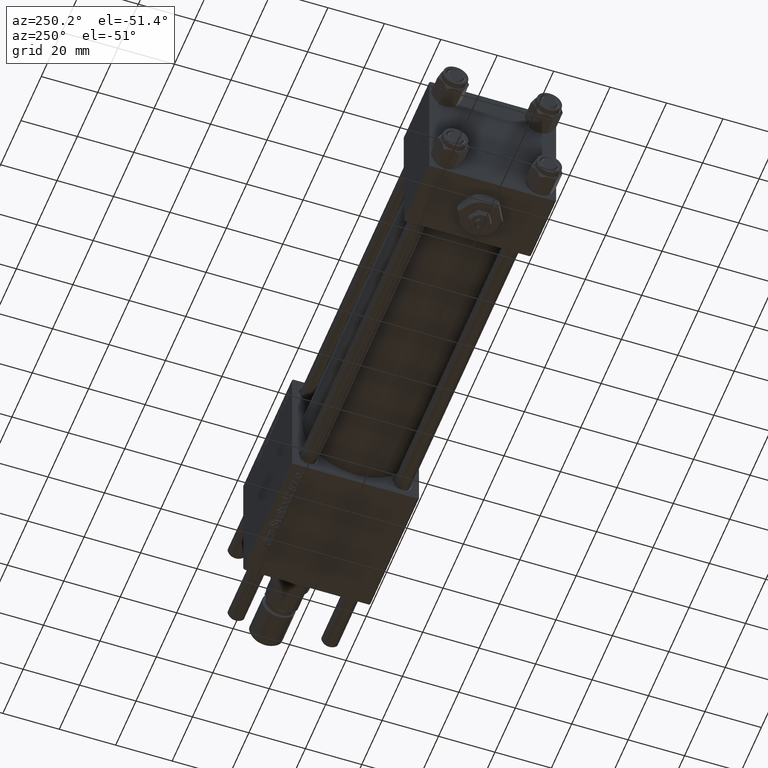
[diagram: clean part render]
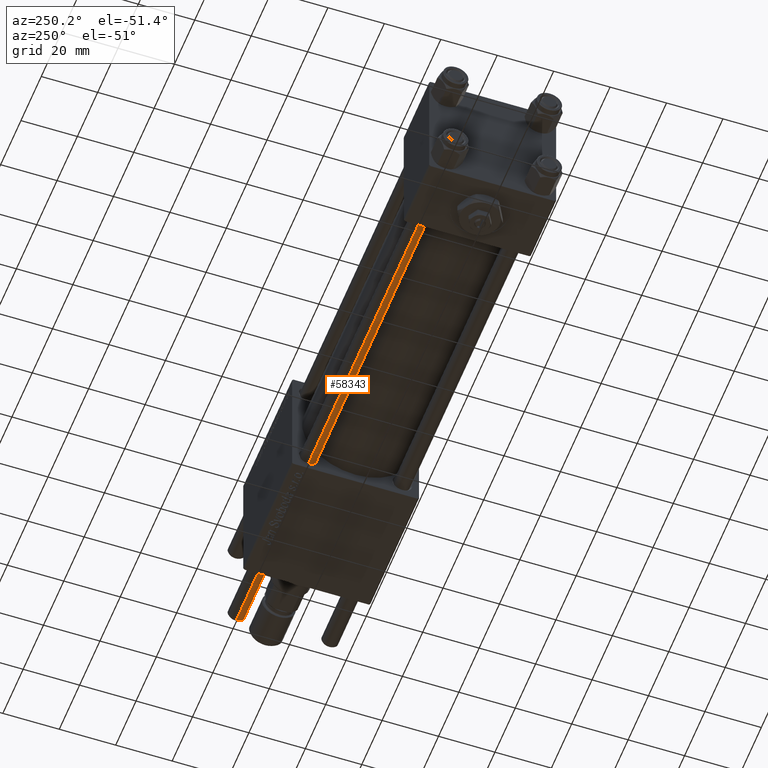
[diagram: same view with one face highlighted and labeled with its STEP entity id]
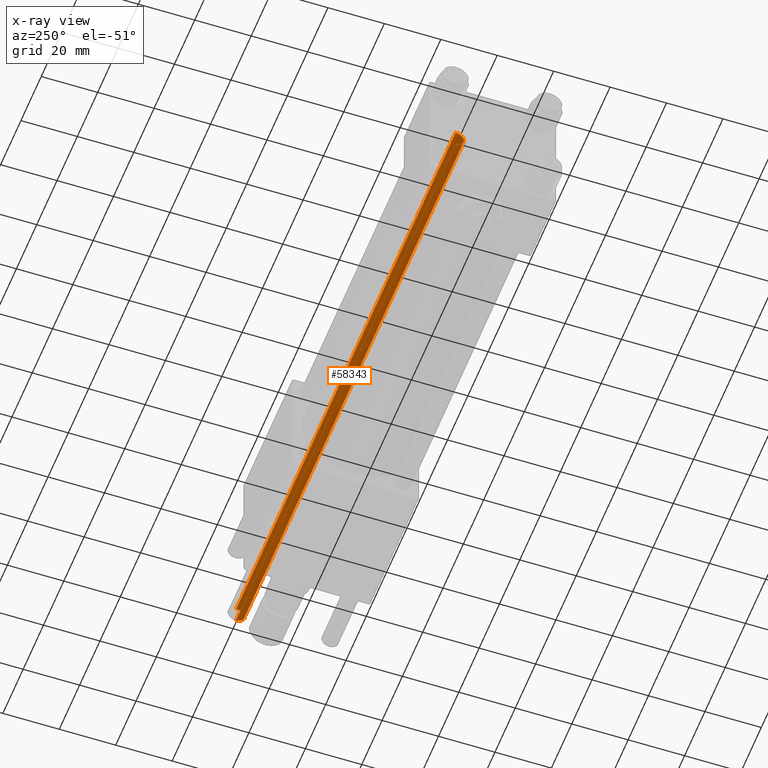
[diagram: x-ray of the same camera — body ghosted, the highlighted face saturated]
A machine part, auxiliary view. The second image highlights one B-rep face of the part: STEP entity #58343.
The next image is the same camera in x-ray: the body ghosted, the highlighted face saturated — about 0% of this face is hidden behind the body in this view.
In plain terms, the highlighted cylindrical surface (edge-blend (fillet) strip) has radius 3 mm, axis along (-1, -0, 0).
Its self-contained STEP definition (entity closure, byte-faithful):
#736 = FACE_OUTER_BOUND ( 'NONE', #41614, .T. ) ;
#828 = DIRECTION ( 'NONE',  ( 1.000000000000000000, 0.000000000000000000, 0.000000000000000000 ) ) ;
#2598 = CIRCLE ( 'NONE', #27418, 3.000000000000000444 ) ;
#4821 = CARTESIAN_POINT ( 'NONE',  ( 3.000000000000000444, 3.673940397442060361E-16, 217.0000000000000000 ) ) ;
#5140 = ORIENTED_EDGE ( 'NONE', *, *, #7292, .T. ) ;
#5290 = CARTESIAN_POINT ( 'NONE',  ( 0.000000000000000000, 0.000000000000000000, 0.5000000000000559552 ) ) ;
#6244 = VERTEX_POINT ( 'NONE', #40143 ) ;
#7292 = EDGE_CURVE ( 'NONE', #6244, #43245, #2598, .T. ) ;
#11136 = DIRECTION ( 'NONE',  ( 1.000000000000000000, 0.000000000000000000, 0.000000000000000000 ) ) ;
#11223 = EDGE_CURVE ( 'NONE', #30944, #6244, #15094, .T. ) ;
#13222 = VECTOR ( 'NONE', #41660, 1000.000000000000000 ) ;
#14589 = CARTESIAN_POINT ( 'NONE',  ( 3.000000000000000444, 3.673940397442060361E-16, 216.5000000000000000 ) ) ;
#15094 = LINE ( 'NONE', #46735, #13222 ) ;
#15329 = CARTESIAN_POINT ( 'NONE',  ( 0.000000000000000000, 0.000000000000000000, 216.5000000000000000 ) ) ;
#16349 = CIRCLE ( 'NONE', #23991, 3.000000000000000444 ) ;
#16609 = ORIENTED_EDGE ( 'NONE', *, *, #18504, .F. ) ;
#18255 = LINE ( 'NONE', #4821, #56359 ) ;
#18504 = EDGE_CURVE ( 'NONE', #18732, #43245, #18255, .T. ) ;
#18732 = VERTEX_POINT ( 'NONE', #14589 ) ;
#19516 = EDGE_CURVE ( 'NONE', #18732, #30944, #16349, .T. ) ;
#20338 = CARTESIAN_POINT ( 'NONE',  ( -3.000000000000000444, 0.000000000000000000, 216.5000000000000000 ) ) ;
#23490 = DIRECTION ( 'NONE',  ( -0.000000000000000000, -0.000000000000000000, 1.000000000000000000 ) ) ;
#23991 = AXIS2_PLACEMENT_3D ( 'NONE', #15329, #56492, #11136 ) ;
#27418 = AXIS2_PLACEMENT_3D ( 'NONE', #5290, #23490, #828 ) ;
#30944 = VERTEX_POINT ( 'NONE', #20338 ) ;
#37142 = DIRECTION ( 'NONE',  ( -0.000000000000000000, -0.000000000000000000, -1.000000000000000000 ) ) ;
#40143 = CARTESIAN_POINT ( 'NONE',  ( -3.000000000000000444, 0.000000000000000000, 0.5000000000000559552 ) ) ;
#40764 = ORIENTED_EDGE ( 'NONE', *, *, #19516, .T. ) ;
#41235 = DIRECTION ( 'NONE',  ( -0.000000000000000000, -0.000000000000000000, -1.000000000000000000 ) ) ;
#41614 = EDGE_LOOP ( 'NONE', ( #16609, #40764, #49677, #5140 ) ) ;
#41660 = DIRECTION ( 'NONE',  ( -0.000000000000000000, -0.000000000000000000, -1.000000000000000000 ) ) ;
#43245 = VERTEX_POINT ( 'NONE', #43545 ) ;
#43545 = CARTESIAN_POINT ( 'NONE',  ( 3.000000000000000444, 3.673940397442060361E-16, 0.5000000000000559552 ) ) ;
#46094 = CARTESIAN_POINT ( 'NONE',  ( 0.000000000000000000, 0.000000000000000000, 217.0000000000000000 ) ) ;
#46735 = CARTESIAN_POINT ( 'NONE',  ( -3.000000000000000444, 0.000000000000000000, 217.0000000000000000 ) ) ;
#49677 = ORIENTED_EDGE ( 'NONE', *, *, #11223, .T. ) ;
#50568 = CYLINDRICAL_SURFACE ( 'NONE', #52387, 3.000000000000000444 ) ;
#52387 = AXIS2_PLACEMENT_3D ( 'NONE', #46094, #37142, #55327 ) ;
#55327 = DIRECTION ( 'NONE',  ( -1.000000000000000000, 0.000000000000000000, 0.000000000000000000 ) ) ;
#56359 = VECTOR ( 'NONE', #41235, 1000.000000000000000 ) ;
#56492 = DIRECTION ( 'NONE',  ( 0.000000000000000000, 0.000000000000000000, -1.000000000000000000 ) ) ;
#58343 = ADVANCED_FACE ( 'NONE', ( #736 ), #50568, .T. ) ;